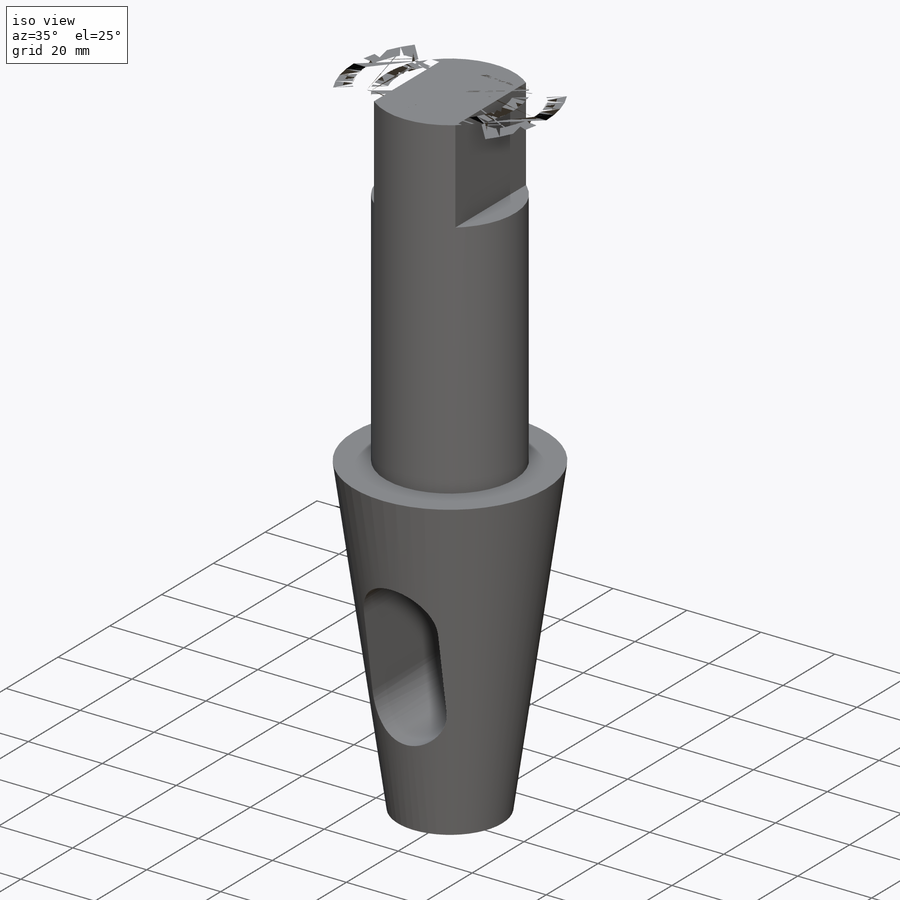
[diagram: iso view]
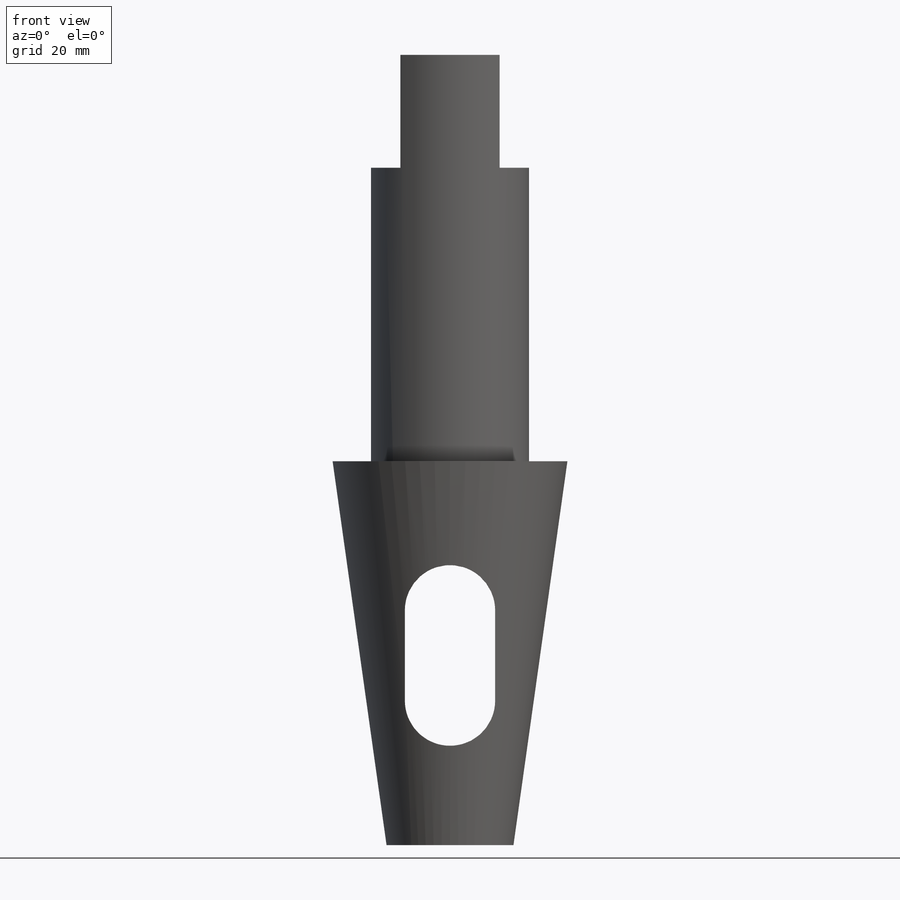
[diagram: front view]
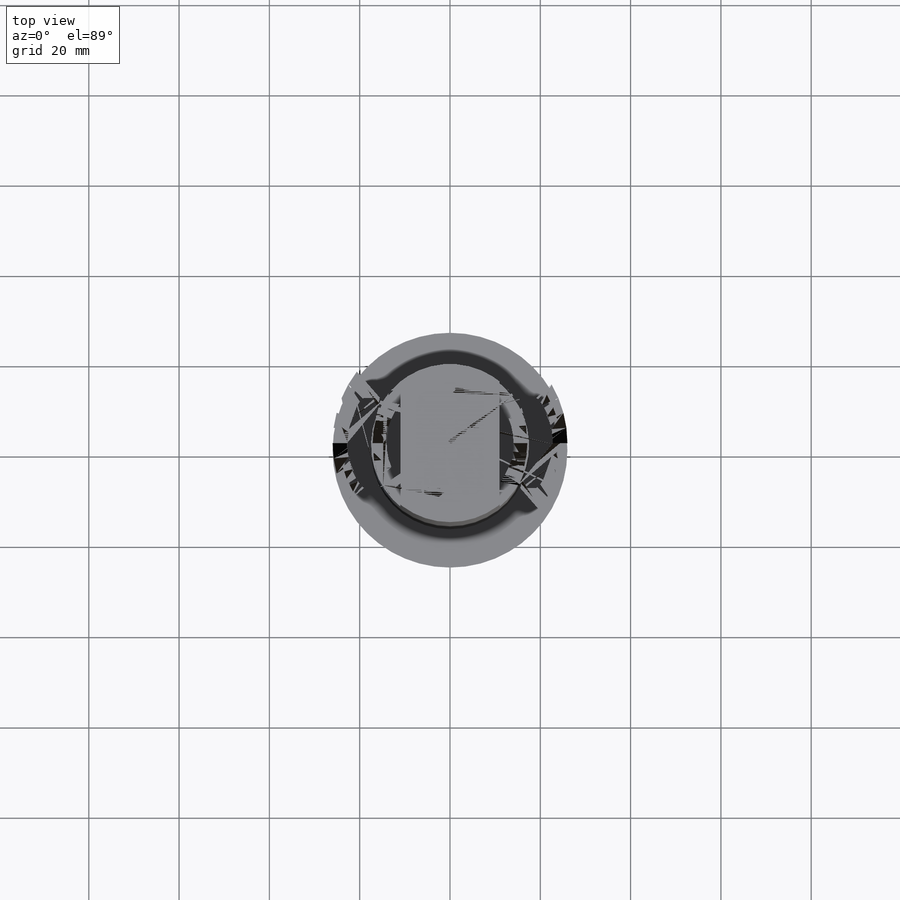
[diagram: top view]
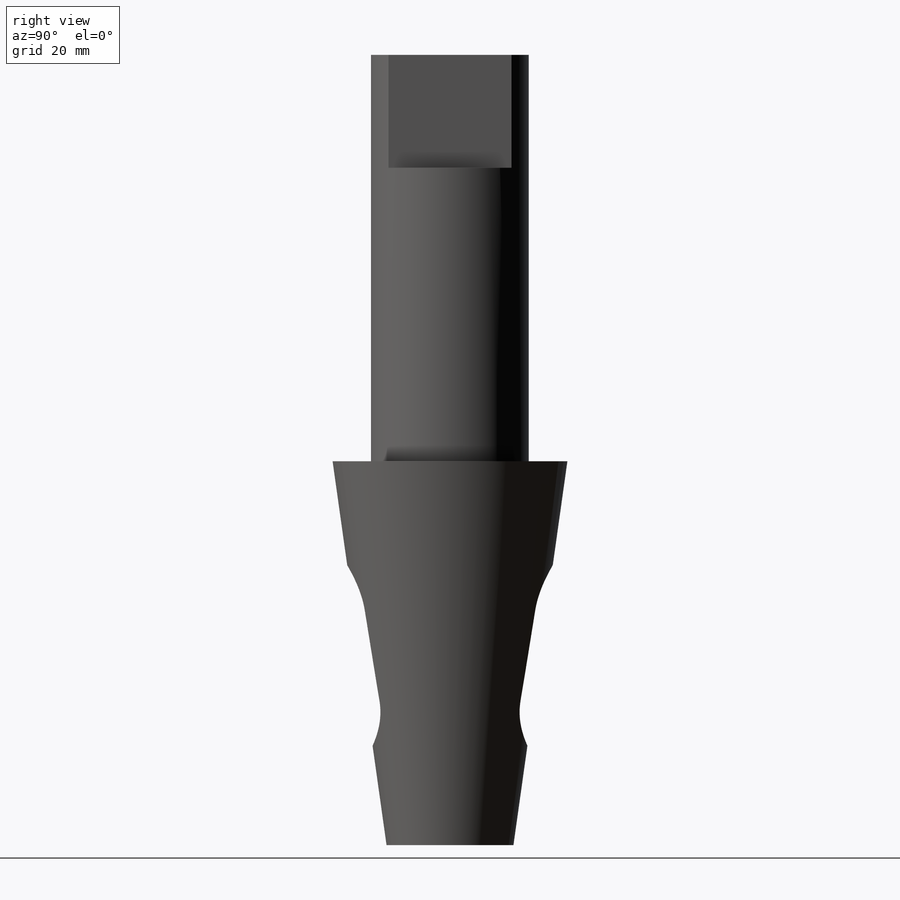
[diagram: right view]
SOLIDWORKS PART (.sldprt)
format: sldprt  version: not decoded by parser v0  size: 252,928 bytes
history: native  units: mm
features: plane x3, sketch x3, cut_extrude x2, material x1, revolve x1 (+9 scaffold rows collapsed)
feature tree (19):
  scaffold x9  (default folders/planes/origin — collapsed)
  material  "Сталь"
  plane  "Спереди"
  plane  "Сверху"
  plane  "Справа"
  sketch  "Эскиз1"  dims[c1.D1=35.0mm c1.D2=175.0mm c1.D3=54.0mm c1.D4=~111.928167mm c2.D4=8.0deg c2.D5=90.0mm c2.D3=52.0mm]
  revolve  "Повернуть1"  Angle=360deg
  sketch  "Эскиз2"  dims[c1.D2=10.0mm c1.D3=10.0mm c1.D1=20.0mm c2.D2=40.0mm c2.D3=23.0mm]
  cut_extrude  "Вырез-Вытянуть1"  Depth=50mm
  sketch  "Эскиз3"  dims[D2=11.0mm D1=0.0mm]
  cut_extrude  "Вырез-Вытянуть2"  Depth=25mm
decode coverage: 6 of 6 modeling features carry decoded parameters
note: ~ marks probable driven/reference dimensions
note: suppression state not decoded; provenance and decode notes live in map.json
